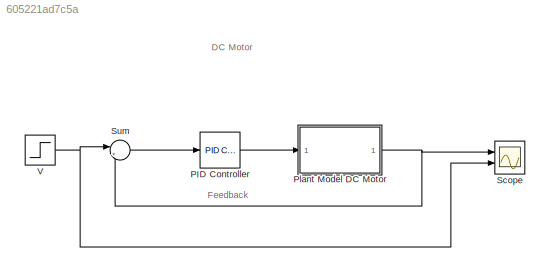
MODEL slx_605221ad7c5a
KIND model
CONFIG AbsTol = auto
CONFIG EnableMultiTasking = off
CONFIG FixedStep = auto
CONFIG MaxStep = auto
CONFIG MinStep = auto
CONFIG RelTol = 1e-3
CONFIG SampleTimeConstraint = Unconstrained
CONFIG Solver = VariableStepAuto
CONFIG SolverName = VariableStepAuto
CONFIG StartTime = 0.0
CONFIG StopTime = 10
BLOCK [Reference] PID Controller  REF=simulink/Continuous/PID Controller
  Ports = [1, 1]
  SourceBlock = simulink/Continuous/PID Controller
  SourceProductBaseCode = SL
  SourceProductName = Simulink
  SourceType = PID 1dof
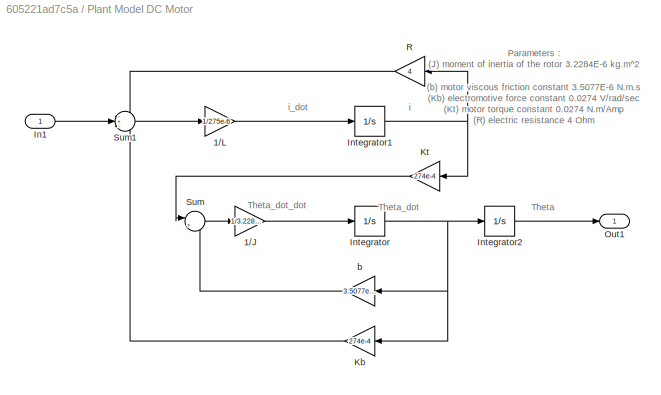
BLOCK [SubSystem] Plant Model DC Motor
  Ports = [1, 1]
  RequestExecContextInheritance = off
BLOCK [Gain] Plant Model DC Motor/1//J
  Gain = 1/3.2284e-6
  OutDataTypeStr = Inherit: Inherit via internal rule
  ParamDataTypeStr = Inherit: Inherit via internal rule
  SaturateOnIntegerOverflow = off
BLOCK [Gain] Plant Model DC Motor/1//L
  Gain = 1/275e-6
  OutDataTypeStr = Inherit: Inherit via internal rule
  ParamDataTypeStr = Inherit: Inherit via internal rule
  SaturateOnIntegerOverflow = off
BLOCK [Inport] Plant Model DC Motor/In1
  IconDisplay = Port number
BLOCK [Integrator] Plant Model DC Motor/Integrator
  Ports = [1, 1]
BLOCK [Integrator] Plant Model DC Motor/Integrator1
  Ports = [1, 1]
BLOCK [Integrator] Plant Model DC Motor/Integrator2
  Ports = [1, 1]
BLOCK [Gain] Plant Model DC Motor/Kb
  Gain = 274e-4
  OutDataTypeStr = Inherit: Inherit via internal rule
  ParamDataTypeStr = Inherit: Inherit via internal rule
  SaturateOnIntegerOverflow = off
BLOCK [Gain] Plant Model DC Motor/Kt
  Gain = 274e-4
  OutDataTypeStr = Inherit: Inherit via internal rule
  ParamDataTypeStr = Inherit: Inherit via internal rule
  SaturateOnIntegerOverflow = off
BLOCK [Outport] Plant Model DC Motor/Out1
  IconDisplay = Port number
BLOCK [Gain] Plant Model DC Motor/R
  Gain = 4
  OutDataTypeStr = Inherit: Inherit via internal rule
  ParamDataTypeStr = Inherit: Inherit via internal rule
  SaturateOnIntegerOverflow = off
BLOCK [Sum] Plant Model DC Motor/Sum
  IconShape = round
  InputSameDT = off
  Inputs = |+-
  OutDataTypeStr = Inherit: Inherit via internal rule
  Ports = [2, 1]
  SaturateOnIntegerOverflow = off
BLOCK [Sum] Plant Model DC Motor/Sum1
  IconShape = round
  InputSameDT = off
  Inputs = -+-
  OutDataTypeStr = Inherit: Inherit via internal rule
  Ports = [3, 1]
  SaturateOnIntegerOverflow = off
BLOCK [Gain] Plant Model DC Motor/b
  Gain = 3.5077e-6
  OutDataTypeStr = Inherit: Inherit via internal rule
  ParamDataTypeStr = Inherit: Inherit via internal rule
  SaturateOnIntegerOverflow = off
BLOCK [Scope] Scope
  Floating = off
  NumInputPorts = 2
  Ports = [2]
  ScopeSpecificationString = Simulink.scopes.TimeScopeBlockCfg('CurrentConfiguration', extmgr.ConfigurationSet(extmgr.Configuration('Core','General UI',true),extmgr.Configuration('Core','Source UI',true),extmgr.Configuration('Sources','WiredSimulink',true),extmgr.Configuration('Visuals','Time Domain',true,'SerializedDisplays',{struct('MinYLimReal','-0.13315','MaxYLimReal','1.19837','YLabelReal','','MinYLimMag','0.00000','MaxY...<+1369ch>
BLOCK [Sum] Sum
  IconShape = round
  InputSameDT = off
  Inputs = |+-
  OutDataTypeStr = Inherit: Inherit via internal rule
  Ports = [2, 1]
  SaturateOnIntegerOverflow = off
BLOCK [Step] V
  SampleTime = 0
ANNOTATION (root): DC Motor
ANNOTATION (root): Feedback
ANNOTATION Plant Model DC Motor: Parameters : (J) moment of inertia of the rotor 3.2284E-6 kg.m^2 (b) motor viscous friction constant 3.5077E-6 N.m.s (Kb) electromotive force constant 0.0274 V/rad/sec (Kt) motor torque constant 0.0274 N.m/Amp (R) electric resistance 4 Ohm (L) electric inductance 2.75E-6H
ANNOTATION Plant Model DC Motor: Theta
ANNOTATION Plant Model DC Motor: Theta_dot
ANNOTATION Plant Model DC Motor: Theta_dot_dot
ANNOTATION Plant Model DC Motor: i
ANNOTATION Plant Model DC Motor: i_dot
LINE PID Controller:1 -> Plant Model DC Motor:1
LINE Plant Model DC Motor/1//J:1 -> Plant Model DC Motor/Integrator:1
LINE Plant Model DC Motor/1//L:1 -> Plant Model DC Motor/Integrator1:1
LINE Plant Model DC Motor/In1:1 -> Plant Model DC Motor/Sum1:2
NET Plant Model DC Motor/Integrator1:1 -> Plant Model DC Motor/Kt:1, Plant Model DC Motor/R:1
LINE Plant Model DC Motor/Integrator2:1 -> Plant Model DC Motor/Out1:1
NET Plant Model DC Motor/Integrator:1 -> Plant Model DC Motor/Integrator2:1, Plant Model DC Motor/Kb:1, Plant Model DC Motor/b:1
LINE Plant Model DC Motor/Kb:1 -> Plant Model DC Motor/Sum1:3
LINE Plant Model DC Motor/Kt:1 -> Plant Model DC Motor/Sum:1
LINE Plant Model DC Motor/R:1 -> Plant Model DC Motor/Sum1:1
LINE Plant Model DC Motor/Sum1:1 -> Plant Model DC Motor/1//L:1
LINE Plant Model DC Motor/Sum:1 -> Plant Model DC Motor/1//J:1
LINE Plant Model DC Motor/b:1 -> Plant Model DC Motor/Sum:2
NET Plant Model DC Motor:1 -> Scope:1, Sum:2
LINE Sum:1 -> PID Controller:1
NET V:1 -> Scope:2, Sum:1
note: NET lines group one-source signal fan-out (src -> all destinations, sorted); 1:1 wires keep LINE
